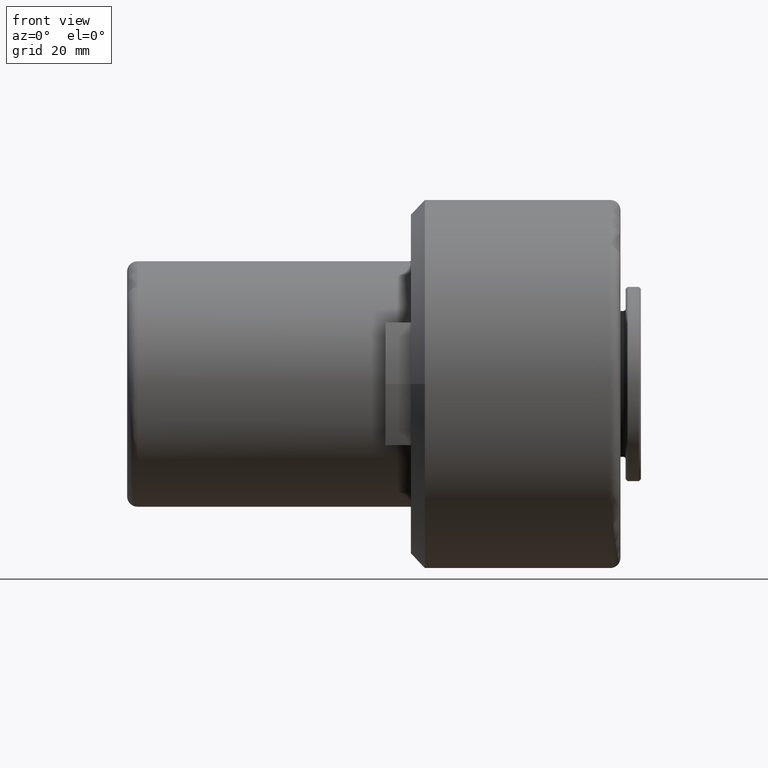
[diagram: clean part render]
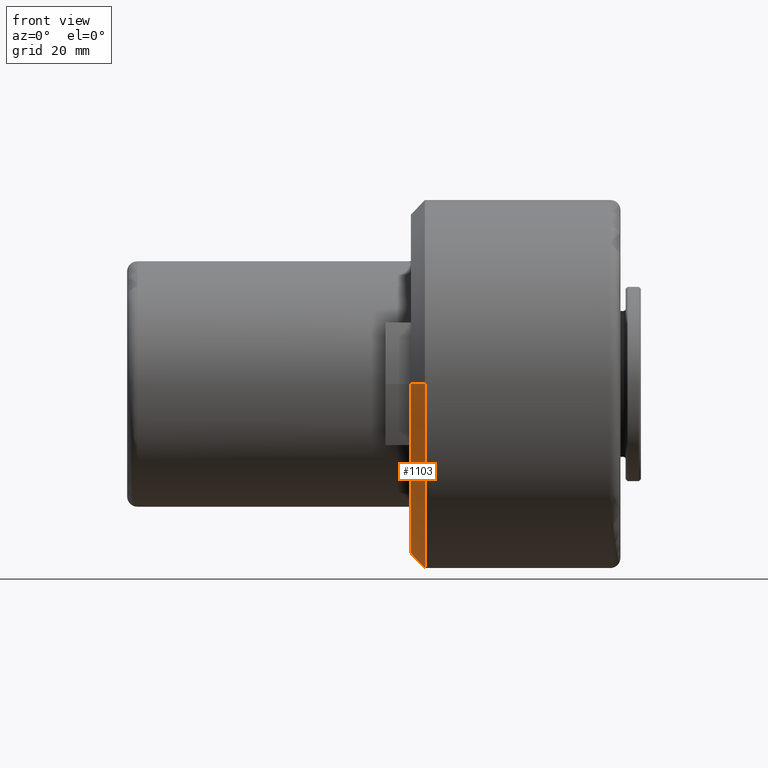
[diagram: same view with one face highlighted and labeled with its STEP entity id]
A machine part, front view. The second image highlights one B-rep face of the part: STEP entity #1103.
In plain terms, the highlighted conical surface has half-angle 45 deg.
Its self-contained STEP definition (entity closure, byte-faithful):
#26 = DIRECTION ( 'NONE',  ( -1.000000000000000000, -0.0000000000000000000, -1.043442692316876300E-016 ) ) ;
#76 = EDGE_CURVE ( 'NONE', #403, #336, #1307, .T. ) ;
#85 = ORIENTED_EDGE ( 'NONE', *, *, #658, .T. ) ;
#134 = CARTESIAN_POINT ( 'NONE',  ( 55.49999999999999300, -2.650271977186816100E-016, 0.0000000000000000000 ) ) ;
#149 = CARTESIAN_POINT ( 'NONE',  ( 55.49999999999999300, -33.24999999999999300, 4.240339542047711600E-015 ) ) ;
#176 = CIRCLE ( 'NONE', #374, 36.00000000000002800 ) ;
#180 = CONICAL_SURFACE ( 'NONE', #1330, 36.00000000000002100, 0.7853981633974470600 ) ;
#194 = DIRECTION ( 'NONE',  ( 1.927470528863117600E-016, 0.0000000000000000000, -1.000000000000000000 ) ) ;
#203 = CARTESIAN_POINT ( 'NONE',  ( 55.49999999999999300, 33.24999999999999300, 0.0000000000000000000 ) ) ;
#212 = FACE_OUTER_BOUND ( 'NONE', #944, .T. ) ;
#215 = ORIENTED_EDGE ( 'NONE', *, *, #531, .T. ) ;
#239 = DIRECTION ( 'NONE',  ( 0.0000000000000000000, 1.000000000000000000, 0.0000000000000000000 ) ) ;
#259 = AXIS2_PLACEMENT_3D ( 'NONE', #554, #26, #194 ) ;
#279 = CARTESIAN_POINT ( 'NONE',  ( 58.25000000000002100, 36.00000000000002100, 0.0000000000000000000 ) ) ;
#283 = AXIS2_PLACEMENT_3D ( 'NONE', #134, #894, #239 ) ;
#318 = CARTESIAN_POINT ( 'NONE',  ( 58.25000000000001400, -36.00000000000001400, 4.408728476930473200E-015 ) ) ;
#336 = VERTEX_POINT ( 'NONE', #318 ) ;
#374 = AXIS2_PLACEMENT_3D ( 'NONE', #1058, #1011, #616 ) ;
#403 = VERTEX_POINT ( 'NONE', #149 ) ;
#416 = VECTOR ( 'NONE', #604, 1000.000000000000000 ) ;
#511 = VERTEX_POINT ( 'NONE', #203 ) ;
#531 = EDGE_CURVE ( 'NONE', #692, #1254, #176, .T. ) ;
#541 = CARTESIAN_POINT ( 'NONE',  ( 58.25000000000002100, 0.0000000000000000000, 0.0000000000000000000 ) ) ;
#554 = CARTESIAN_POINT ( 'NONE',  ( 58.25000000000001400, 0.0000000000000000000, 2.869467403871423700E-016 ) ) ;
#604 = DIRECTION ( 'NONE',  ( 0.7071067811865483500, 0.7071067811865468000, 0.0000000000000000000 ) ) ;
#616 = DIRECTION ( 'NONE',  ( 1.927470528863117600E-016, -8.881784197001252300E-016, -1.000000000000000000 ) ) ;
#635 = CIRCLE ( 'NONE', #259, 36.00000000000002800 ) ;
#658 = EDGE_CURVE ( 'NONE', #1254, #336, #635, .T. ) ;
#692 = VERTEX_POINT ( 'NONE', #942 ) ;
#707 = LINE ( 'NONE', #279, #416 ) ;
#723 = ORIENTED_EDGE ( 'NONE', *, *, #927, .T. ) ;
#838 = CIRCLE ( 'NONE', #283, 33.24999999999999300 ) ;
#843 = DIRECTION ( 'NONE',  ( 0.7071067811865485700, -0.7071067811865465700, 8.659560562354924200E-017 ) ) ;
#850 = ORIENTED_EDGE ( 'NONE', *, *, #1251, .T. ) ;
#894 = DIRECTION ( 'NONE',  ( 1.000000000000000000, 9.637352644315590300E-017, -0.0000000000000000000 ) ) ;
#927 = EDGE_CURVE ( 'NONE', #511, #692, #707, .T. ) ;
#942 = CARTESIAN_POINT ( 'NONE',  ( 58.25000000000001400, 36.00000000000001400, 0.0000000000000000000 ) ) ;
#944 = EDGE_LOOP ( 'NONE', ( #952, #850, #723, #215, #85 ) ) ;
#952 = ORIENTED_EDGE ( 'NONE', *, *, #76, .F. ) ;
#1011 = DIRECTION ( 'NONE',  ( -1.000000000000000000, -0.0000000000000000000, -1.043442692316876300E-016 ) ) ;
#1058 = CARTESIAN_POINT ( 'NONE',  ( 58.25000000000001400, 0.0000000000000000000, 2.869467403871423700E-016 ) ) ;
#1103 = ADVANCED_FACE ( 'NONE', ( #212 ), #180, .T. ) ;
#1179 = CARTESIAN_POINT ( 'NONE',  ( 58.25000000000002100, -36.00000000000002100, 4.408728476930474000E-015 ) ) ;
#1202 = CARTESIAN_POINT ( 'NONE',  ( 58.25000000000002100, 4.408728476930474800E-015, -36.00000000000002800 ) ) ;
#1227 = DIRECTION ( 'NONE',  ( 0.0000000000000000000, 1.000000000000000000, 0.0000000000000000000 ) ) ;
#1251 = EDGE_CURVE ( 'NONE', #403, #511, #838, .T. ) ;
#1254 = VERTEX_POINT ( 'NONE', #1202 ) ;
#1271 = VECTOR ( 'NONE', #843, 1000.000000000000000 ) ;
#1280 = DIRECTION ( 'NONE',  ( 1.000000000000000000, 9.637352644315590300E-017, -0.0000000000000000000 ) ) ;
#1307 = LINE ( 'NONE', #1179, #1271 ) ;
#1330 = AXIS2_PLACEMENT_3D ( 'NONE', #541, #1280, #1227 ) ;